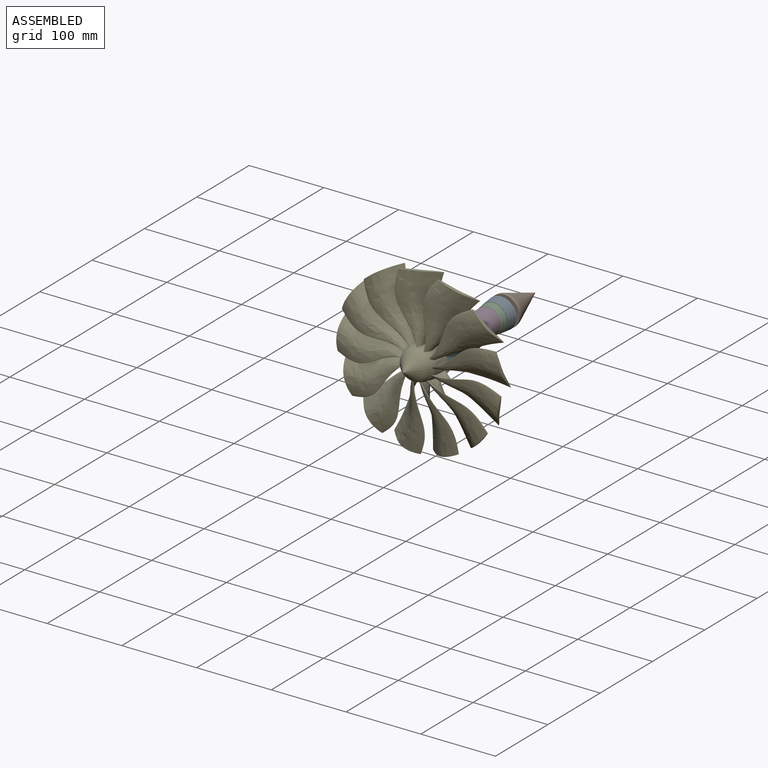
[diagram: assembled view]
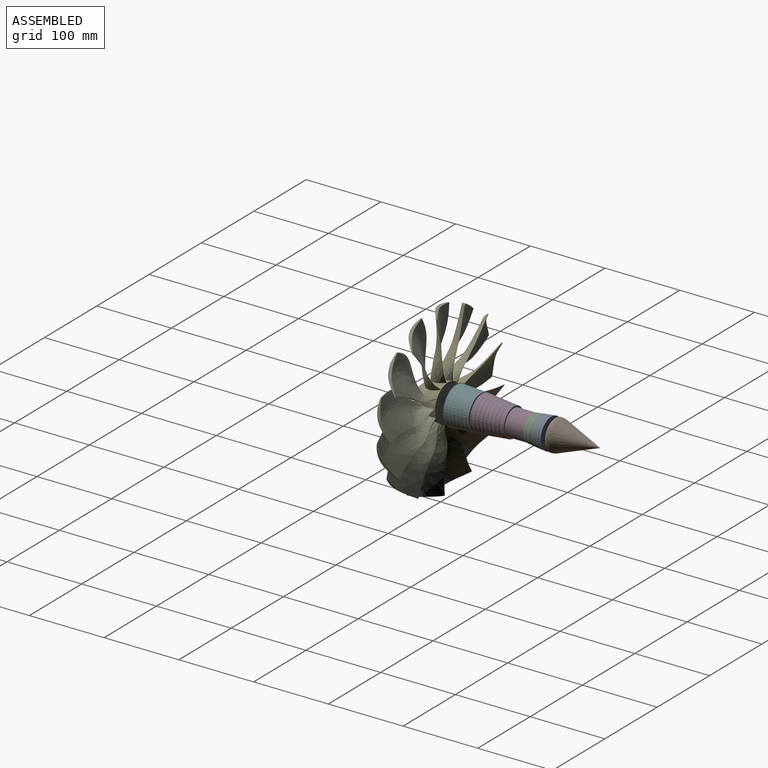
[diagram: assembled view, second angle]
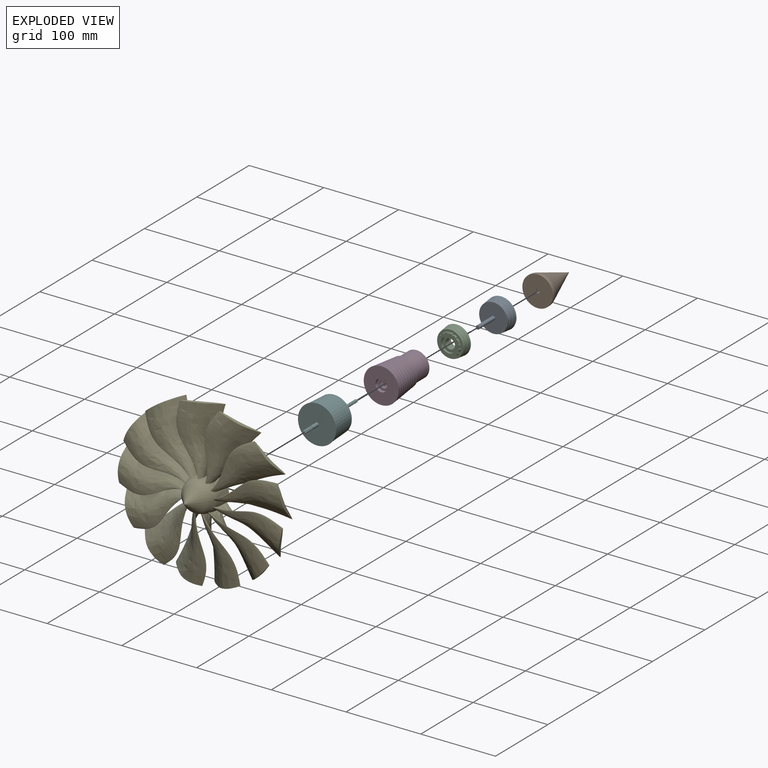
[diagram: exploded view]
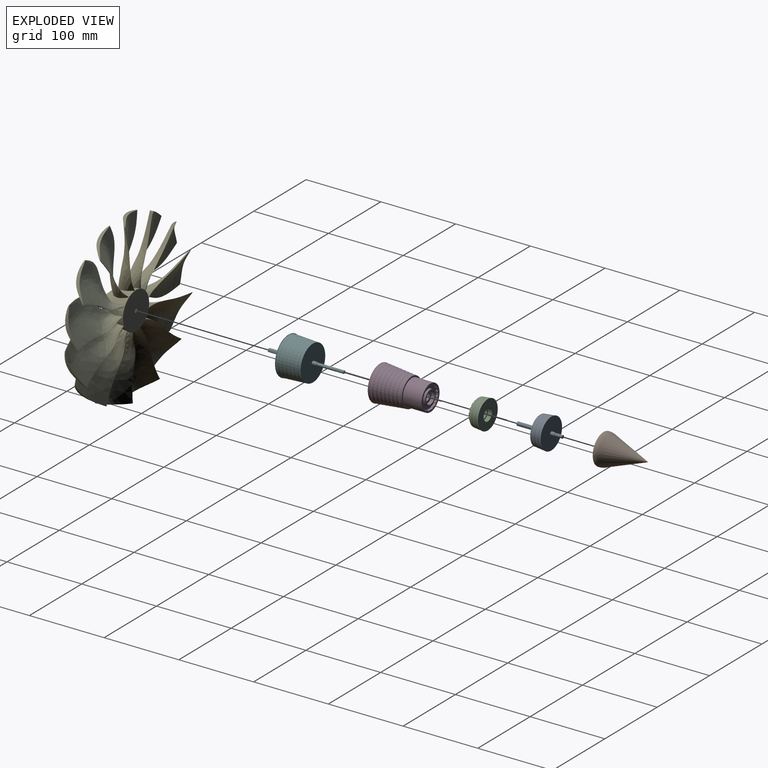
[diagram: exploded view, second angle]
ASSEMBLY  parts=6 mates=9
PART A: 14 faces, bbox 41x60.5x41 mm
  f0: plane 4.95x4.95mm, normal (0,-1,0), area 19.2mm2, adj f13
  f1: plane 4x4mm, normal (0,1,0), area 12.6mm2, adj f2
  f2: cylinder r=2mm len=10mm, axis (0,1,0), area 125.7mm2, adj f1,f3
  f3: plane 4.95x4.95mm, normal (0,1,0), area 6.7mm2, adj f2,f4
  f4: cylinder r=2.48mm len=5.5mm, axis (0,1,0), area 85.5mm2, adj f3,f5
  f5: plane 41x41mm, normal (0,1,0), area 1301mm2, adj f4,f6
  f6: cone r=20mm half-angle=11.3deg, axis (0,1,0), area 324.4mm2, adj f5,f7
  f7: cylinder r=20mm len=40mm, axis (0,1,0), area 314.2mm2, adj f6,f8
  f8: cone r=19.5mm half-angle=11.3deg, axis (0,1,0), area 316.4mm2, adj f7,f9
  f9: cylinder r=19.5mm len=39mm, axis (0,1,0), area 306.3mm2, adj f8,f10
  f10: cone r=19mm half-angle=11.3deg, axis (0,1,0), area 308.4mm2, adj f9,f11
  f11: cylinder r=19mm len=38mm, axis (0,1,0), area 298.5mm2, adj f10,f12
  f12: plane 38x38mm, normal (0,-1,0), area 1114.9mm2, adj f11,f13
  f13: cylinder r=2.48mm len=30mm, axis (0,1,0), area 466.5mm2, adj f0,f12
PART B: 6 faces, bbox 41x60x41 mm
  f0: cone r=19.59mm half-angle=20.1deg, axis (0,-1,0), area 3505.7mm2, adj f1
  f1: torus R=5.5mm, axis (0,1,0), area 667.9mm2, adj f0,f2
  f2: cylinder r=20.5mm len=41mm, axis (0,1,0), area 172.7mm2, adj f1,f3
  f3: plane 41x41mm, normal (0,-1,0), area 1302.5mm2, adj f2,f4
  f4: cylinder r=2.38mm len=10mm, axis (0,-1,0), area 149.2mm2, adj f3,f5
  f5: plane 4.75x4.75mm, normal (0,-1,0), area 17.7mm2, adj f4
PART C: 43 faces, bbox 38x15.5x38 mm
  f0: cylinder r=14.5mm len=3.28mm, axis (0,-1,0), area 12.2mm2, adj f24,f25,f41,f42
  f1: cylinder r=14.5mm len=3.52mm, axis (0,-1,0), area 12.2mm2, adj f24,f25,f40,f41
  f2: cylinder r=14.5mm len=4.04mm, axis (0,-1,0), area 12.2mm2, adj f24,f25,f39,f40
  f3: cylinder r=14.5mm len=3.86mm, axis (0,-1,0), area 12.2mm2, adj f24,f25,f38,f39
  f4: cylinder r=14.5mm len=3.02mm, axis (0,-1,0), area 12.2mm2, adj f24,f25,f37,f38
  f5: cylinder r=14.5mm len=3.71mm, axis (0,-1,0), area 12.2mm2, adj f24,f25,f36,f37
  f6: cylinder r=14.5mm len=4.06mm, axis (0,-1,0), area 12.2mm2, adj f24,f25,f35,f36
  f7: cylinder r=14.5mm len=3.71mm, axis (0,-1,0), area 12.2mm2, adj f24,f25,f34,f35
  f8: cylinder r=14.5mm len=3.02mm, axis (0,-1,0), area 12.2mm2, adj f24,f25,f33,f34
  f9: cylinder r=14.5mm len=3.86mm, axis (0,-1,0), area 12.2mm2, adj f24,f25,f32,f33
  f10: cylinder r=14.5mm len=4.04mm, axis (0,-1,0), area 12.2mm2, adj f24,f25,f31,f32
  f11: cylinder r=14.5mm len=3.52mm, axis (0,-1,0), area 12.2mm2, adj f24,f25,f30,f31
  f12: cylinder r=14.5mm len=3.28mm, axis (0,-1,0), area 12.2mm2, adj f24,f25,f29,f30
  f13: cylinder r=14.5mm len=3.97mm, axis (0,-1,0), area 12.2mm2, adj f24,f25,f28,f29
  f14: cylinder r=14.5mm len=3.97mm, axis (0,-1,0), area 12.2mm2, adj f24,f25,f28,f42
  f15: cylinder r=6.5mm len=13mm, axis (0,-1,0), area 285.9mm2, adj f16,f27
  f16: plane 16.1x16.1mm, normal (0,1,0), area 70.9mm2, adj f15,f17
  f17: cylinder r=8.05mm len=16.1mm, axis (0,-1,0), area 278.2mm2, adj f16,f18
  f18: plane 38x38mm, normal (0,1,0), area 930.5mm2, adj f17,f19
  f19: cone r=18.5mm half-angle=11.3deg, axis (0,1,0), area 300.4mm2, adj f18,f20
  f20: cylinder r=18.5mm len=37mm, axis (0,-1,0), area 290.6mm2, adj f19,f21
  f21: cone r=18mm half-angle=11.3deg, axis (0,1,0), area 292.3mm2, adj f20,f22
  f22: cylinder r=18mm len=36mm, axis (0,-1,0), area 282.7mm2, adj f21,f23
  f23: cone r=17.5mm half-angle=11.3deg, axis (0,1,0), area 284.3mm2, adj f22,f24
  f24: plane 35x35mm, normal (0,-1,0), area 324.8mm2, adj f0,f1,f2,f3,f4,f5,f6,f7
  f25: plane 29x28.97mm, normal (0,-1,0), area 320mm2, adj f0,f1,f2,f3,f4,f5,f6,f7
  f26: cylinder r=10.05mm len=20.1mm, axis (0,-1,0), area 189.4mm2, adj f25,f27
  f27: plane 20.1x20.1mm, normal (0,-1,0), area 184.6mm2, adj f15,f26
  f28: cylinder r=1mm len=3mm, axis (0,-1,0), area 9.2mm2, adj f13,f14,f24,f25
  f29: cylinder r=1mm len=3mm, axis (0,-1,0), area 9.2mm2, adj f12,f13,f24,f25
  f30: cylinder r=1mm len=3mm, axis (0,-1,0), area 9.2mm2, adj f11,f12,f24,f25
  f31: cylinder r=1mm len=3mm, axis (0,-1,0), area 9.2mm2, adj f10,f11,f24,f25
  f32: cylinder r=1mm len=3mm, axis (0,-1,0), area 9.2mm2, adj f9,f10,f24,f25
  f33: cylinder r=1mm len=3mm, axis (0,-1,0), area 9.2mm2, adj f8,f9,f24,f25
  f34: cylinder r=1mm len=3mm, axis (0,-1,0), area 9.2mm2, adj f7,f8,f24,f25
  f35: cylinder r=1mm len=3mm, axis (0,-1,0), area 9.2mm2, adj f6,f7,f24,f25
  f36: cylinder r=1mm len=3mm, axis (0,-1,0), area 9.2mm2, adj f5,f6,f24,f25
  f37: cylinder r=1mm len=3mm, axis (0,-1,0), area 9.2mm2, adj f4,f5,f24,f25
  f38: cylinder r=1mm len=3mm, axis (0,-1,0), area 9.2mm2, adj f3,f4,f24,f25
  f39: cylinder r=1mm len=3mm, axis (0,-1,0), area 9.2mm2, adj f2,f3,f24,f25
  f40: cylinder r=1mm len=3mm, axis (0,-1,0), area 9.2mm2, adj f1,f2,f24,f25
  f41: cylinder r=1mm len=3mm, axis (0,-1,0), area 9.2mm2, adj f0,f1,f24,f25
  f42: cylinder r=1mm len=3mm, axis (0,-1,0), area 9.2mm2, adj f0,f14,f24,f25
PART D: 72 faces, bbox 47x67.5x47 mm
  f0: plane 20x20mm, normal (0,1,0), area 110.6mm2, adj f28,f69
  f1: plane 34.5x34.5mm, normal (0,1,0), area 251.3mm2, adj f29,f40,f41,f42,f43,f44,f45,f46
  f2: cylinder r=21.5mm len=43mm, axis (0,-1,0), area 337.7mm2, adj f3,f39
  f3: cone r=22mm half-angle=11.3deg, axis (0,-1,0), area 348.4mm2, adj f2,f4
  f4: cylinder r=22mm len=44mm, axis (0,-1,0), area 345.6mm2, adj f3,f5
  f5: cone r=22.5mm half-angle=11.3deg, axis (0,-1,0), area 356.4mm2, adj f4,f6
  f6: cylinder r=22.5mm len=45mm, axis (0,-1,0), area 353.4mm2, adj f5,f7
  f7: cone r=23mm half-angle=11.3deg, axis (0,-1,0), area 364.4mm2, adj f6,f8
  f8: cylinder r=23mm len=46mm, axis (0,-1,0), area 361.3mm2, adj f7,f9
  f9: cone r=23.5mm half-angle=11.3deg, axis (0,-1,0), area 372.4mm2, adj f8,f10
  f10: plane 47x47mm, normal (0,-1,0), area 1531.4mm2, adj f9,f11
  f11: cylinder r=8.05mm len=16.1mm, axis (0,-1,0), area 227.6mm2, adj f10,f12
  f12: plane 16.1x16.1mm, normal (0,-1,0), area 125mm2, adj f11,f13
  f13: cylinder r=5mm len=10mm, axis (0,-1,0), area 31.4mm2, adj f12,f14
  f14: torus R=8mm, axis (0,-1,0), area 180.3mm2, adj f13,f15
  f15: plane 22.1x22.1mm, normal (0,1,0), area 182.5mm2, adj f14,f16
  f16: cylinder r=11.05mm len=22.1mm, axis (0,-1,0), area 173.6mm2, adj f15,f17
  f17: torus R=14.05mm, axis (0,-1,0), area 359.5mm2, adj f16,f18
  f18: plane 31.23x31.23mm, normal (0,1,0), area 145.9mm2, adj f17,f19
  f19: torus R=15.62mm, axis (0,-1,0), area 553.9mm2, adj f18,f20
  f20: cone r=15.26mm half-angle=5.7deg, axis (0,-1,0), area 3566.1mm2, adj f19,f21
  f21: torus R=18.25mm, axis (0,-1,0), area 28.7mm2, adj f20,f22
  f22: cylinder r=15.25mm len=30.5mm, axis (0,-1,0), area 1537.9mm2, adj f21,f23
  f23: torus R=12.25mm, axis (0,-1,0), area 419.3mm2, adj f22,f24
  f24: plane 24.5x24.5mm, normal (0,-1,0), area 270.4mm2, adj f23,f25
  f25: torus R=8mm, axis (0,-1,0), area 180.3mm2, adj f24,f26
  f26: cylinder r=5mm len=10mm, axis (0,-1,0), area 31.4mm2, adj f25,f27
  f27: plane 16.1x16.1mm, normal (0,1,0), area 125mm2, adj f26,f28
  f28: cylinder r=8.05mm len=16.1mm, axis (0,-1,0), area 227.6mm2, adj f0,f27
  f29: cylinder r=17.25mm len=34.5mm, axis (0,-1,0), area 2709.6mm2, adj f1,f30
  f30: plane 38.5x38.5mm, normal (0,1,0), area 229.3mm2, adj f29,f31
  f31: cone r=19.5mm half-angle=5.7deg, axis (0,-1,0), area 305.9mm2, adj f30,f32
  f32: cylinder r=19.5mm len=39mm, axis (0,-1,0), area 306.3mm2, adj f31,f33
  f33: cone r=20mm half-angle=11.3deg, axis (0,-1,0), area 316.4mm2, adj f32,f34
  f34: cylinder r=20mm len=40mm, axis (0,-1,0), area 314.2mm2, adj f33,f35
  f35: cone r=20.5mm half-angle=11.3deg, axis (0,-1,0), area 324.4mm2, adj f34,f36
  f36: cylinder r=20.5mm len=41mm, axis (0,-1,0), area 322mm2, adj f35,f37
  f37: cone r=21mm half-angle=11.3deg, axis (0,-1,0), area 332.4mm2, adj f36,f38
  f38: cylinder r=21mm len=42mm, axis (0,-1,0), area 329.9mm2, adj f37,f39
  f39: cone r=21.5mm half-angle=11.3deg, axis (0,-1,0), area 340.4mm2, adj f2,f38
  f40: cylinder r=2mm len=3mm, axis (0,1,0), area 10.2mm2, adj f1,f41,f70,f71
  f41: cylinder r=15mm len=3.27mm, axis (0,1,0), area 9.8mm2, adj f1,f40,f42,f71
  f42: cylinder r=2mm len=3mm, axis (0,1,0), area 10.2mm2, adj f1,f41,f43,f71
  f43: cylinder r=15mm len=3mm, axis (0,1,0), area 9.8mm2, adj f1,f42,f44,f71
  f44: cylinder r=2mm len=3mm, axis (0,1,0), area 10.2mm2, adj f1,f43,f45,f71
  f45: cylinder r=15mm len=3mm, axis (0,1,0), area 9.8mm2, adj f1,f44,f46,f71
  f46: cylinder r=2mm len=3mm, axis (0,1,0), area 10.2mm2, adj f1,f45,f47,f71
  f47: cylinder r=15mm len=3.11mm, axis (0,1,0), area 9.8mm2, adj f1,f46,f48,f71
  f48: cylinder r=2mm len=3mm, axis (0,1,0), area 10.2mm2, adj f1,f47,f49,f71
  f49: cylinder r=15mm len=3.25mm, axis (0,1,0), area 9.8mm2, adj f1,f48,f50,f71
  f50: cylinder r=2mm len=3mm, axis (0,1,0), area 10.2mm2, adj f1,f49,f51,f71
  f51: cylinder r=15mm len=3mm, axis (0,1,0), area 9.8mm2, adj f1,f50,f52,f71
  f52: cylinder r=2mm len=3mm, axis (0,1,0), area 10.2mm2, adj f1,f51,f53,f71
  f53: cylinder r=15mm len=3mm, axis (0,1,0), area 9.8mm2, adj f1,f52,f54,f71
  f54: cylinder r=2mm len=3mm, axis (0,1,0), area 10.2mm2, adj f1,f53,f55,f71
  f55: cylinder r=15mm len=3.2mm, axis (0,1,0), area 9.8mm2, adj f1,f54,f56,f71
  f56: cylinder r=2mm len=3mm, axis (0,1,0), area 10.2mm2, adj f1,f55,f57,f71
  f57: cylinder r=15mm len=3.2mm, axis (0,1,0), area 9.8mm2, adj f1,f56,f58,f71
  f58: cylinder r=2mm len=3mm, axis (0,1,0), area 10.2mm2, adj f1,f57,f59,f71
  f59: cylinder r=15mm len=3mm, axis (0,1,0), area 9.8mm2, adj f1,f58,f60,f71
  f60: cylinder r=2mm len=3mm, axis (0,1,0), area 10.2mm2, adj f1,f59,f61,f71
  f61: cylinder r=15mm len=3mm, axis (0,1,0), area 9.8mm2, adj f1,f60,f62,f71
  f62: cylinder r=2mm len=3mm, axis (0,1,0), area 10.2mm2, adj f1,f61,f63,f71
  f63: cylinder r=15mm len=3.25mm, axis (0,1,0), area 9.8mm2, adj f1,f62,f64,f71
  f64: cylinder r=2mm len=3mm, axis (0,1,0), area 10.2mm2, adj f1,f63,f65,f71
  f65: cylinder r=15mm len=3.11mm, axis (0,1,0), area 9.8mm2, adj f1,f64,f66,f71
  f66: cylinder r=2mm len=3mm, axis (0,1,0), area 10.2mm2, adj f1,f65,f67,f71
  f67: cylinder r=15mm len=3mm, axis (0,1,0), area 9.8mm2, adj f1,f66,f68,f71
  f68: cylinder r=2mm len=3mm, axis (0,1,0), area 10.2mm2, adj f1,f67,f70,f71
  f69: cylinder r=10mm len=20mm, axis (0,1,0), area 188.5mm2, adj f0,f71
  f70: cylinder r=15mm len=3mm, axis (0,1,0), area 9.8mm2, adj f1,f40,f68,f71
  f71: plane 30x29.93mm, normal (0,1,0), area 369.3mm2, adj f40,f41,f42,f43,f44,f45,f46,f47
PART E: 71 faces, bbox 225.1x50.5x223.6 mm
  f0: torus R=7.6mm, axis (0,1,0), area 28.4mm2, adj f1,f51,f65,f68
  f1: bspline ~89x51.67mm, area 7417.2mm2, adj f0,f2,f3,f4,f49,f50,f51,f68
  f2: plane 1.73x1.04mm, normal (0,0,-1), area 0.8mm2, adj f1,f68
  f3: cone r=18.37mm half-angle=21.1deg, axis (0,1,0), area 0.5mm2, adj f1,f4,f68
  f4: torus R=7.6mm, axis (0,1,0), area 28.4mm2, adj f1,f3,f5,f51,f68
  f5: bspline ~88.69x69.9mm, area 7417.5mm2, adj f4,f6,f7,f48,f51,f68
  f6: plane 1.58x1.08mm, normal (0.46,0,-0.89), area 0.8mm2, adj f5,f68
  f7: torus R=7.6mm, axis (0,1,0), area 28.4mm2, adj f5,f8,f51,f68
  f8: bspline ~91.56x68.06mm, area 7417.5mm2, adj f7,f9,f10,f47,f51,f68
  f9: plane 1.47x1.08mm, normal (0.82,0,-0.57), area 0.8mm2, adj f8,f68
  f10: torus R=7.6mm, axis (0,1,0), area 28.4mm2, adj f8,f11,f51,f68
  f11: bspline ~92.24x54.43mm, area 7417.5mm2, adj f10,f12,f13,f46,f51,f68
  f12: plane 1.76x1.08mm, normal (0.99,0,-0.12), area 0.8mm2, adj f11,f68
  f13: torus R=7.6mm, axis (0,1,0), area 28.4mm2, adj f11,f14,f51,f68
  f14: bspline ~90.76x61.7mm, area 7417.5mm2, adj f13,f15,f16,f45,f51,f68
  f15: plane 1.66x1.08mm, normal (0.94,0,0.35), area 0.8mm2, adj f14,f68
  f16: torus R=7.6mm, axis (0,1,0), area 28.4mm2, adj f14,f17,f51,f68
  f17: bspline ~87.99x74.94mm, area 7417.5mm2, adj f16,f18,f19,f44,f51,f68
  f18: plane 1.34x1.2mm, normal (0.66,0,0.75), area 0.8mm2, adj f17,f68
  f19: torus R=7.6mm, axis (0,1,0), area 28.4mm2, adj f17,f20,f51,f68
  f20: bspline ~94.13x57.06mm, area 7417.5mm2, adj f19,f21,f22,f43,f51,f68
  f21: plane 1.72x1.08mm, normal (0.24,0,0.97), area 0.8mm2, adj f20,f68
  f22: torus R=7.6mm, axis (0,1,0), area 28.4mm2, adj f20,f23,f51,f68
  f23: bspline ~91.5x52.6mm, area 7417.5mm2, adj f22,f24,f25,f42,f51,f68
  f24: plane 1.72x1.08mm, normal (-0.24,0,0.97), area 0.8mm2, adj f23,f68
  f25: torus R=7.6mm, axis (0,1,0), area 28.4mm2, adj f23,f26,f51,f68
  f26: bspline ~83.15x80.72mm, area 7417.5mm2, adj f25,f27,f28,f41,f51,f68
  f27: plane 1.34x1.2mm, normal (-0.66,0,0.75), area 0.8mm2, adj f26,f68
  f28: torus R=7.6mm, axis (0,1,0), area 28.4mm2, adj f26,f29,f51,f68
  f29: bspline ~94.65x59.4mm, area 7417.5mm2, adj f28,f30,f31,f40,f51,f68
  f30: plane 1.66x1.08mm, normal (-0.94,0,0.35), area 0.8mm2, adj f29,f68
  f31: torus R=7.6mm, axis (0,1,0), area 28.4mm2, adj f29,f32,f51,f68
  f32: bspline ~90.92x48.9mm, area 7417.5mm2, adj f31,f33,f34,f39,f51,f68
  f33: plane 1.76x1.08mm, normal (-0.99,0,-0.12), area 0.8mm2, adj f32,f68
  f34: torus R=7.6mm, axis (0,1,0), area 28.4mm2, adj f32,f35,f51,f68
  f35: bspline ~85.33x77.09mm, area 7417.5mm2, adj f34,f36,f37,f38,f51,f68
  f36: plane 1.47x1.08mm, normal (-0.82,0,-0.57), area 0.8mm2, adj f35,f68
  f37: torus R=7.6mm, axis (0,1,0), area 28.4mm2, adj f35,f51,f65,f68
  f38: cylinder r=110mm len=39.28mm, axis (0,1,0), area 195.9mm2, adj f35
  f39: cylinder r=110mm len=48.34mm, axis (0,1,0), area 195.9mm2, adj f32
  f40: cylinder r=110mm len=46.33mm, axis (0,1,0), area 195.9mm2, adj f29
  f41: cylinder r=110mm len=35.48mm, axis (0,1,0), area 195.9mm2, adj f26
  f42: cylinder r=110mm len=47.08mm, axis (0,1,0), area 195.9mm2, adj f23
  f43: cylinder r=110mm len=47.89mm, axis (0,1,0), area 195.9mm2, adj f20
  f44: cylinder r=110mm len=37.73mm, axis (0,1,0), area 195.9mm2, adj f17
  f45: cylinder r=110mm len=45.13mm, axis (0,1,0), area 195.9mm2, adj f14
  f46: cylinder r=110mm len=48.75mm, axis (0,1,0), area 195.9mm2, adj f11
  f47: cylinder r=110mm len=41.21mm, axis (0,1,0), area 195.9mm2, adj f8
  f48: cylinder r=110mm len=42.51mm, axis (0,1,0), area 195.9mm2, adj f5
  f49: cone r=22.22mm half-angle=7.9deg, axis (0,1,0), area 7mm2, adj f1,f51
  f50: cylinder r=110mm len=48.91mm, axis (0,1,0), area 195.9mm2, adj f1
  f51: cone r=22.22mm half-angle=7.9deg, axis (0,1,0), area 2249.3mm2, adj f0,f1,f4,f5,f7,f8,f10,f11
  f52: plane 50.02x50.02mm, normal (0,1,0), area 1948.7mm2, adj f51,f53,f54,f56,f57,f58,f59,f60
  f53: bspline ~54.96x13.09mm, area 0mm2, adj f52
  f54: cylinder r=2.38mm len=16mm, axis (0,1,0), area 27.5mm2, adj f52,f55,f56,f64
  f55: plane 4.75x4.67mm, normal (0,1,0), area 14.8mm2, adj f54,f56,f57,f58,f59,f60,f61,f62
  f56: cylinder r=0.63mm len=16mm, axis (0,1,0), area 29mm2, adj f52,f54,f55,f57
  f57: cylinder r=2.38mm len=16mm, axis (0,1,0), area 27.5mm2, adj f52,f55,f56,f58
  f58: cylinder r=0.63mm len=16mm, axis (0,1,0), area 29mm2, adj f52,f55,f57,f59
  f59: cylinder r=2.38mm len=16mm, axis (0,1,0), area 27.5mm2, adj f52,f55,f58,f60
  f60: cylinder r=0.63mm len=16mm, axis (0,1,0), area 29mm2, adj f52,f55,f59,f61
  f61: cylinder r=2.38mm len=16mm, axis (0,1,0), area 27.5mm2, adj f52,f55,f60,f62
  f62: cylinder r=0.63mm len=16mm, axis (0,1,0), area 29mm2, adj f52,f55,f61,f63
  f63: cylinder r=2.38mm len=16mm, axis (0,1,0), area 27.5mm2, adj f52,f55,f62,f64
  f64: cylinder r=0.63mm len=16mm, axis (0,1,0), area 29mm2, adj f52,f54,f55,f63
  f65: bspline ~93.79x61.44mm, area 7417.5mm2, adj f0,f37,f51,f66,f67,f68
  f66: plane 1.58x1.08mm, normal (-0.46,0,-0.89), area 0.8mm2, adj f65,f68
  f67: cylinder r=110mm len=44.09mm, axis (0,1,0), area 195.9mm2, adj f65
  f68: cone r=18.37mm half-angle=21.1deg, axis (0,1,0), area 753.6mm2, adj f0,f1,f2,f3,f4,f5,f6,f7
  f69: torus R=5.4mm, axis (0,1,0), area 639.6mm2, adj f68,f70
  f70: cone r=0mm half-angle=42.6deg, axis (0,1,0), area 1255.6mm2, adj f69
PART F: 42 faces, bbox 51x101x51 mm
  f0: plane 3.75x3.75mm, normal (0,1,0), area 10.7mm2, adj f14,f34,f36,f38,f40
  f1: plane 4.95x4.95mm, normal (0,-1,0), area 5.4mm2, adj f2,f3,f4,f5,f6,f7,f8,f9
  f2: cylinder r=2.48mm len=11mm, axis (0,1,0), area 171.1mm2, adj f1,f33
  f3: cylinder r=0.66mm len=15mm, axis (0,1,0), area 28.1mm2, adj f1,f4,f12,f13
  f4: cylinder r=2.32mm len=15mm, axis (0,1,0), area 24.1mm2, adj f1,f3,f5,f13
  f5: cylinder r=0.66mm len=15mm, axis (0,1,0), area 28.1mm2, adj f1,f4,f6,f13
  f6: cylinder r=2.32mm len=15mm, axis (0,1,0), area 24.1mm2, adj f1,f5,f7,f13
  f7: cylinder r=0.66mm len=15mm, axis (0,1,0), area 28.1mm2, adj f1,f6,f8,f13
  f8: cylinder r=2.32mm len=15mm, axis (0,1,0), area 24.1mm2, adj f1,f7,f9,f13
  f9: cylinder r=0.66mm len=15mm, axis (0,1,0), area 28.1mm2, adj f1,f8,f10,f13
  f10: cylinder r=2.32mm len=15mm, axis (0,1,0), area 24.1mm2, adj f1,f9,f11,f13
  f11: cylinder r=0.66mm len=15mm, axis (0,1,0), area 28.1mm2, adj f1,f10,f12,f13
  f12: cylinder r=2.32mm len=15mm, axis (0,1,0), area 24.1mm2, adj f1,f3,f11,f13
  f13: plane 4.65x4.56mm, normal (0,-1,0), area 13.8mm2, adj f3,f4,f5,f6,f7,f8,f9,f10
  f14: cylinder r=1.98mm len=36mm, axis (0,1,0), area 395.9mm2, adj f0,f15,f34,f35,f36,f37,f38,f39
  f15: plane 4.95x4.95mm, normal (0,1,0), area 7mm2, adj f14,f16
  f16: cylinder r=2.48mm len=6mm, axis (0,1,0), area 93.3mm2, adj f15,f17
  f17: plane 47x47mm, normal (0,1,0), area 1715.7mm2, adj f16,f18
  f18: cylinder r=23.5mm len=47mm, axis (0,1,0), area 369.1mm2, adj f17,f19
  f19: cone r=23.75mm half-angle=5.7deg, axis (0,-1,0), area 373mm2, adj f18,f20
  f20: cylinder r=23.75mm len=47.5mm, axis (0,1,0), area 373.1mm2, adj f19,f21
  f21: cone r=24mm half-angle=5.7deg, axis (0,-1,0), area 376.9mm2, adj f20,f22
  f22: cylinder r=24mm len=48mm, axis (0,1,0), area 377mm2, adj f21,f23
  f23: cone r=24.25mm half-angle=5.7deg, axis (0,-1,0), area 380.8mm2, adj f22,f24
  f24: cylinder r=24.25mm len=48.5mm, axis (0,1,0), area 380.9mm2, adj f23,f25
  f25: cone r=24.5mm half-angle=5.7deg, axis (0,-1,0), area 384.8mm2, adj f24,f26
  f26: cylinder r=24.5mm len=49mm, axis (0,1,0), area 384.8mm2, adj f25,f27
  f27: cone r=24.75mm half-angle=5.7deg, axis (0,-1,0), area 388.7mm2, adj f26,f28
  f28: cylinder r=24.75mm len=49.5mm, axis (0,1,0), area 388.8mm2, adj f27,f29
  f29: cone r=25mm half-angle=5.7deg, axis (0,-1,0), area 392.7mm2, adj f28,f30
  f30: cylinder r=25mm len=50mm, axis (0,1,0), area 392.7mm2, adj f29,f31
  f31: plane 51x51mm, normal (0,1,0), area 79.3mm2, adj f30,f32
  f32: cylinder r=25.5mm len=51mm, axis (0,1,0), area 80.1mm2, adj f31,f33
  f33: plane 51x51mm, normal (0,-1,0), area 2023.6mm2, adj f2,f32
  f34: cylinder r=0.75mm len=10mm, axis (0,1,0), area 14.8mm2, adj f0,f14,f35
  f35: plane 1.25x0.44mm, normal (0,1,0), area 0.4mm2, adj f14,f34
  f36: cylinder r=0.75mm len=10mm, axis (0,1,0), area 14.8mm2, adj f0,f14,f37
  f37: plane 1.25x0.44mm, normal (0,1,0), area 0.4mm2, adj f14,f36
  f38: cylinder r=0.75mm len=10mm, axis (0,1,0), area 14.8mm2, adj f0,f14,f39
  f39: plane 1.25x0.44mm, normal (0,1,0), area 0.4mm2, adj f14,f38
  f40: cylinder r=0.75mm len=10mm, axis (0,1,0), area 14.8mm2, adj f0,f14,f41
  f41: plane 1.25x0.44mm, normal (0,1,0), area 0.4mm2, adj f14,f40
PLACE A rot(axis=(0,-1,0),33.3deg) t=(-10.98,125.66,13.06)mm
PLACE B rot(axis=(0,1,0),118.4deg) t=(-10.98,146.16,13.06)mm
PLACE C rot(axis=(0,-1,0),50.4deg) t=(-10.98,115.47,13.06)mm
PLACE D rot(axis=(0,1,0),180deg) t=(-10.98,52.47,13.06)mm
PLACE E t=(-10.98,2.47,13.06)mm
PLACE F t=(-10.98,13.47,13.06)mm fixed
MATE planar E.f57 <-> F.f4  axis (0,1,0) through (-10.98,2.47,13.06)mm
MATE planar B.f4 <-> A.f2  axis (0,-1,0) through (-10.98,146.16,13.06)mm
MATE cylindrical D.f2 <-> F.f2  axis (0,-1,0) through (-10.98,90.47,13.06)mm
MATE cylindrical B.f4 <-> A.f2  axis (0,-1,0) through (-10.98,146.16,13.06)mm
MATE cylindrical D.f2 <-> C.f0  axis (0,-1,0) through (-10.98,102.97,13.06)mm
MATE slider F.f2 <-> E.f59  axis (0,1,0) through (-10.98,7.97,13.06)mm
MATE planar D.f1 <-> C.f30  axis (0,1,0) through (-6.41,115.47,27.35)mm
MATE planar D.f2 <-> F.f8  axis (0,-1,0) through (-10.98,52.47,13.06)mm
MATE cylindrical C.f0 <-> A.f2  axis (0,-1,0) through (-10.98,117.97,13.06)mm
